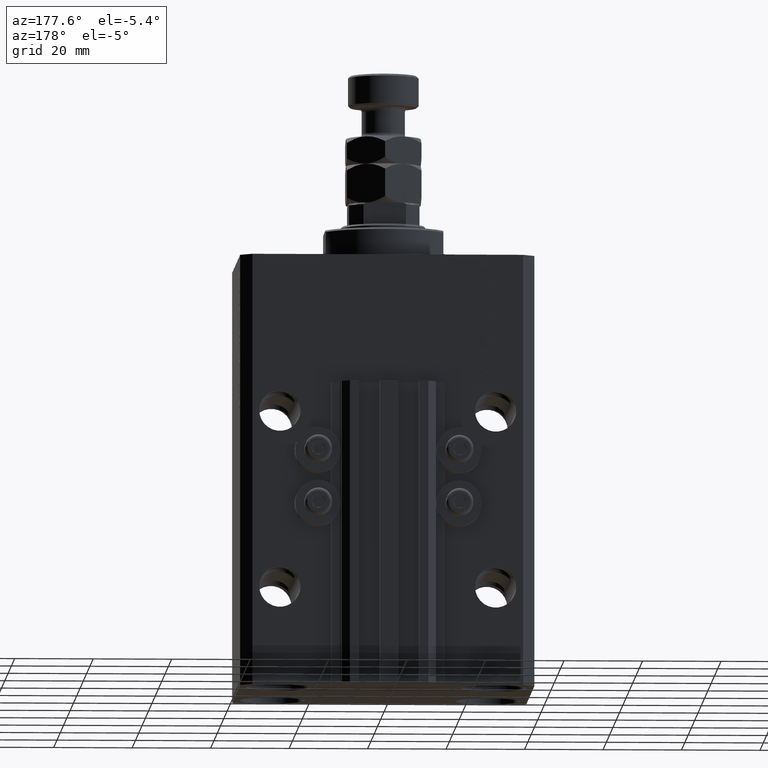
[diagram: clean part render]
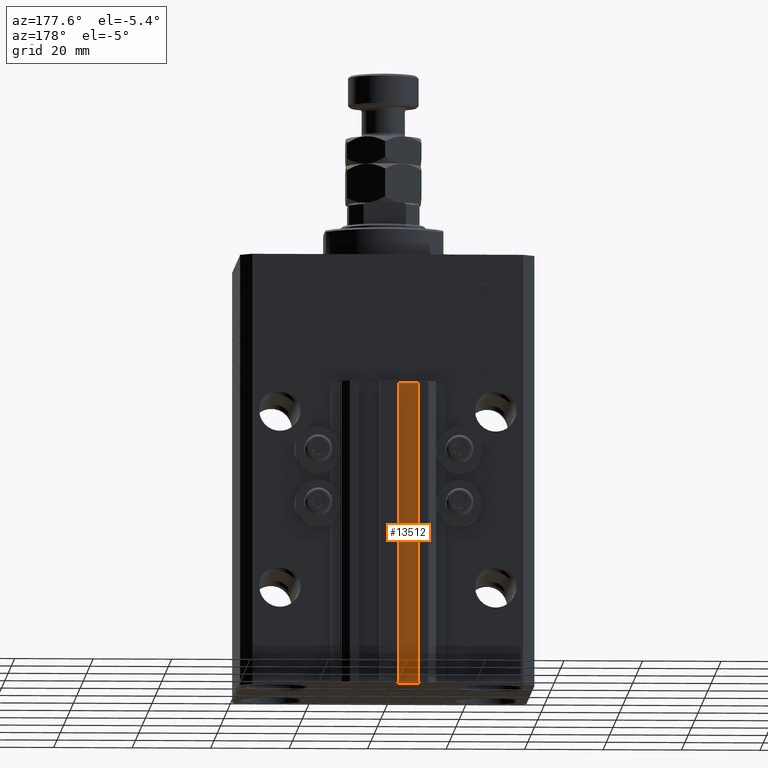
[diagram: same view with one face highlighted and labeled with its STEP entity id]
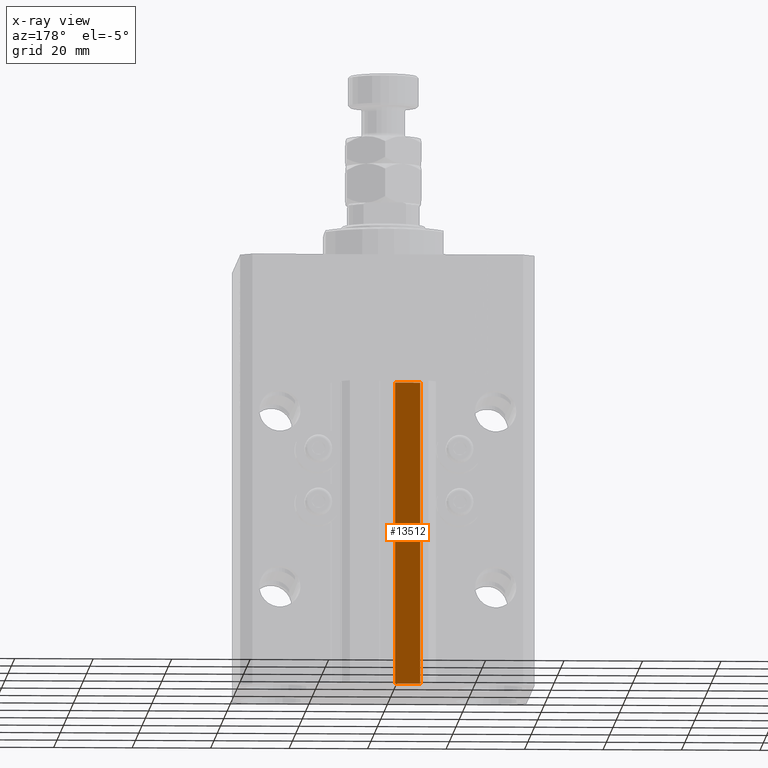
[diagram: x-ray of the same camera — body ghosted, the highlighted face saturated]
A machine part, auxiliary view. The second image highlights one B-rep face of the part: STEP entity #13512.
The next image is the same camera in x-ray: the body ghosted, the highlighted face saturated — about 0% of this face is hidden behind the body in this view.
In plain terms, the highlighted planar face has unit normal (0, 1, 0).
Its self-contained STEP definition (entity closure, byte-faithful):
#68 = ORIENTED_EDGE ( 'NONE', *, *, #14567, .F. ) ;
#3307 = VECTOR ( 'NONE', #5247, 1000.000000000000000 ) ;
#5247 = DIRECTION ( 'NONE',  ( 0.000000000000000000, 0.000000000000000000, 1.000000000000000000 ) ) ;
#6452 = LINE ( 'NONE', #25286, #45316 ) ;
#6769 = VERTEX_POINT ( 'NONE', #8287 ) ;
#8287 = CARTESIAN_POINT ( 'NONE',  ( -1.800000000000000933, 29.50000000000000355, -33.00000000000000000 ) ) ;
#9925 = CARTESIAN_POINT ( 'NONE',  ( -8.199999999999997513, 29.50000000000000355, -110.0000000000000000 ) ) ;
#10867 = ORIENTED_EDGE ( 'NONE', *, *, #24004, .F. ) ;
#11396 = EDGE_CURVE ( 'NONE', #32996, #28270, #37763, .T. ) ;
#11502 = DIRECTION ( 'NONE',  ( 0.000000000000000000, 0.000000000000000000, 1.000000000000000000 ) ) ;
#13512 = ADVANCED_FACE ( 'NONE', ( #29080 ), #22626, .T. ) ;
#14291 = VERTEX_POINT ( 'NONE', #15216 ) ;
#14567 = EDGE_CURVE ( 'NONE', #14291, #6769, #39942, .T. ) ;
#15081 = LINE ( 'NONE', #30194, #28226 ) ;
#15216 = CARTESIAN_POINT ( 'NONE',  ( -1.800000000000000933, 29.50000000000000355, -110.0000000000000000 ) ) ;
#15726 = ORIENTED_EDGE ( 'NONE', *, *, #11396, .T. ) ;
#18183 = DIRECTION ( 'NONE',  ( 0.000000000000000000, 0.000000000000000000, 1.000000000000000000 ) ) ;
#18554 = DIRECTION ( 'NONE',  ( -1.000000000000000000, 0.000000000000000000, 0.000000000000000000 ) ) ;
#19904 = AXIS2_PLACEMENT_3D ( 'NONE', #21650, #26108, #18183 ) ;
#21650 = CARTESIAN_POINT ( 'NONE',  ( -1.800000000000000933, 29.50000000000000355, -110.0000000000000000 ) ) ;
#22626 = PLANE ( 'NONE',  #19904 ) ;
#22839 = ORIENTED_EDGE ( 'NONE', *, *, #39232, .T. ) ;
#24004 = EDGE_CURVE ( 'NONE', #6769, #28270, #15081, .T. ) ;
#25286 = CARTESIAN_POINT ( 'NONE',  ( -1.800000000000000933, 29.50000000000000355, -110.0000000000000000 ) ) ;
#26108 = DIRECTION ( 'NONE',  ( 0.000000000000000000, 1.000000000000000000, -0.000000000000000000 ) ) ;
#27808 = CARTESIAN_POINT ( 'NONE',  ( -1.800000000000000933, 29.50000000000000355, -110.0000000000000000 ) ) ;
#28226 = VECTOR ( 'NONE', #18554, 1000.000000000000000 ) ;
#28270 = VERTEX_POINT ( 'NONE', #42447 ) ;
#29080 = FACE_OUTER_BOUND ( 'NONE', #43416, .T. ) ;
#30194 = CARTESIAN_POINT ( 'NONE',  ( -1.800000000000000933, 29.50000000000000355, -33.00000000000000000 ) ) ;
#32996 = VERTEX_POINT ( 'NONE', #9925 ) ;
#37763 = LINE ( 'NONE', #45185, #45932 ) ;
#39232 = EDGE_CURVE ( 'NONE', #14291, #32996, #6452, .T. ) ;
#39942 = LINE ( 'NONE', #27808, #3307 ) ;
#42447 = CARTESIAN_POINT ( 'NONE',  ( -8.199999999999997513, 29.50000000000000355, -33.00000000000000000 ) ) ;
#43416 = EDGE_LOOP ( 'NONE', ( #10867, #68, #22839, #15726 ) ) ;
#45185 = CARTESIAN_POINT ( 'NONE',  ( -8.199999999999997513, 29.50000000000000355, -110.0000000000000000 ) ) ;
#45316 = VECTOR ( 'NONE', #47093, 1000.000000000000000 ) ;
#45932 = VECTOR ( 'NONE', #11502, 1000.000000000000000 ) ;
#47093 = DIRECTION ( 'NONE',  ( -1.000000000000000000, 0.000000000000000000, 0.000000000000000000 ) ) ;